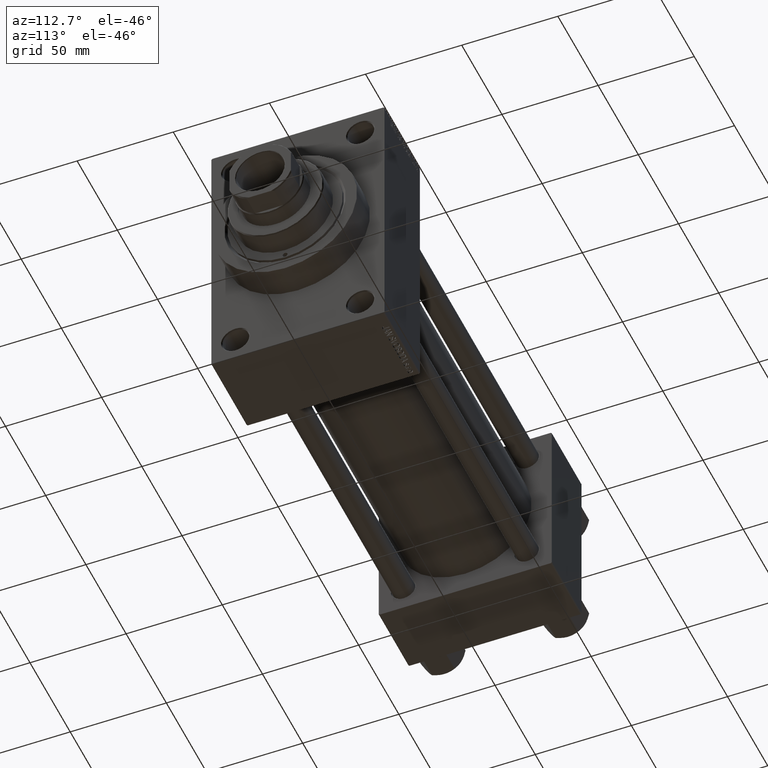
[diagram: clean part render]
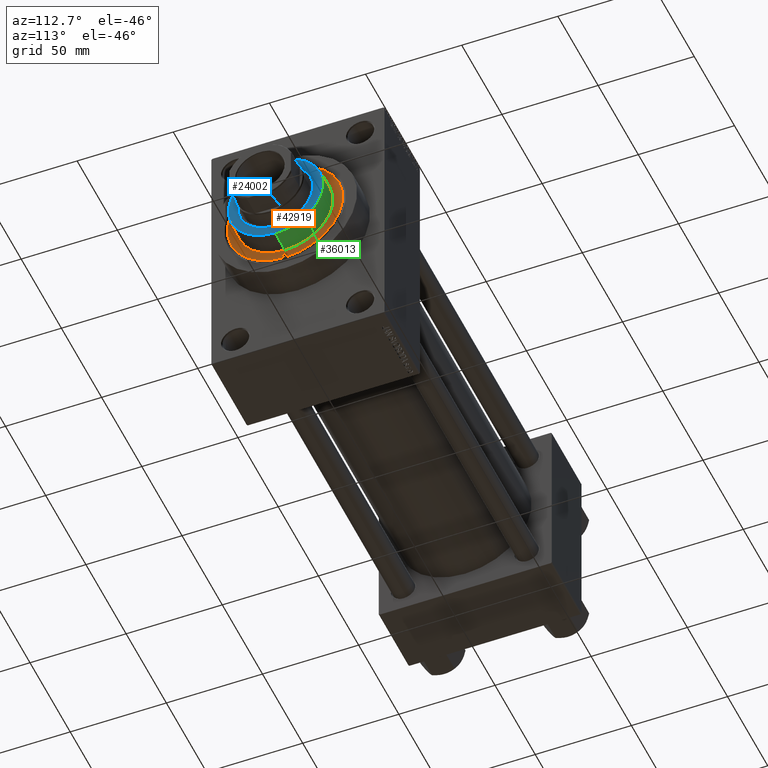
[diagram: same view with three faces highlighted in distinct colors, each labeled with its STEP entity id]
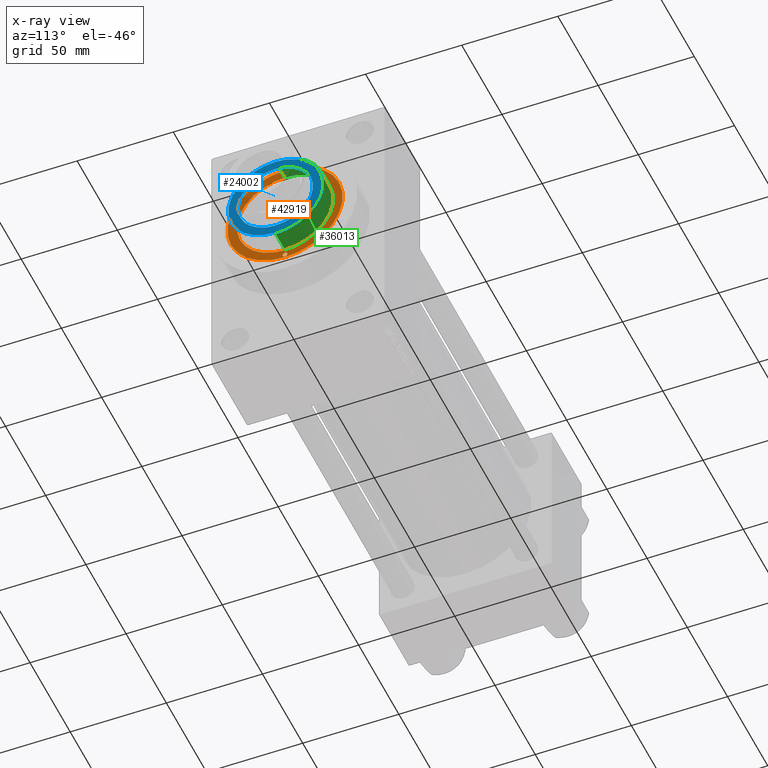
[diagram: x-ray of the same camera — body ghosted, the three highlighted faces saturated]
A machine part, auxiliary view with three faces highlighted in distinct colors.
The next image is the same camera in x-ray (body ghosted, the three faces saturated) — at least one of them is partly hidden behind the body in this view.
Their STEP definitions:

[orange] entity #42919 — the highlighted planar face has unit normal (1, -0, -0).
#709 = DIRECTION ( 'NONE',  ( 1.000000000000000000, 0.000000000000000000, -0.000000000000000000 ) ) ;
#940 = CARTESIAN_POINT ( 'NONE',  ( -29.50000000000000000, 1.530808498934188612E-16, 43.25999999999999801 ) ) ;
#1868 = DIRECTION ( 'NONE',  ( -0.000000000000000000, -0.000000000000000000, 1.000000000000000000 ) ) ;
#2945 = EDGE_CURVE ( 'NONE', #33630, #29931, #31204, .T. ) ;
#4031 = DIRECTION ( 'NONE',  ( 0.000000000000000000, 0.000000000000000000, 1.000000000000000000 ) ) ;
#4145 = CARTESIAN_POINT ( 'NONE',  ( -30.00000000000000000, 0.000000000000000000, 43.25999999999999801 ) ) ;
#4204 = ORIENTED_EDGE ( 'NONE', *, *, #40237, .F. ) ;
#4584 = DIRECTION ( 'NONE',  ( 1.000000000000000000, 0.000000000000000000, 0.000000000000000000 ) ) ;
#4725 = DIRECTION ( 'NONE',  ( 0.000000000000000000, 0.000000000000000000, 1.000000000000000000 ) ) ;
#4750 = CARTESIAN_POINT ( 'NONE',  ( -27.00000000000000355, 0.000000000000000000, 43.25999999999999801 ) ) ;
#5580 = EDGE_CURVE ( 'NONE', #46367, #14130, #36634, .T. ) ;
#5886 = VERTEX_POINT ( 'NONE', #16662 ) ;
#6287 = CIRCLE ( 'NONE', #33069, 1.249999999999997558 ) ;
#6380 = ORIENTED_EDGE ( 'NONE', *, *, #2945, .F. ) ;
#6697 = AXIS2_PLACEMENT_3D ( 'NONE', #14504, #44009, #19293 ) ;
#7420 = FACE_OUTER_BOUND ( 'NONE', #18756, .T. ) ;
#7507 = ORIENTED_EDGE ( 'NONE', *, *, #22323, .F. ) ;
#8165 = CARTESIAN_POINT ( 'NONE',  ( -28.25000000000000000, 0.000000000000000000, 43.25999999999999801 ) ) ;
#11342 = AXIS2_PLACEMENT_3D ( 'NONE', #18235, #21834, #36460 ) ;
#11930 = CARTESIAN_POINT ( 'NONE',  ( 25.00000000000000000, 3.061616997868383043E-15, 43.25999999999999801 ) ) ;
#12463 = DIRECTION ( 'NONE',  ( 1.000000000000000000, 0.000000000000000000, 0.000000000000000000 ) ) ;
#12469 = AXIS2_PLACEMENT_3D ( 'NONE', #30604, #29890, #40911 ) ;
#13873 = EDGE_LOOP ( 'NONE', ( #35812, #31053 ) ) ;
#14130 = VERTEX_POINT ( 'NONE', #31674 ) ;
#14504 = CARTESIAN_POINT ( 'NONE',  ( 28.25000000000000000, 0.000000000000000000, 43.25999999999999801 ) ) ;
#16584 = EDGE_LOOP ( 'NONE', ( #4204, #6380 ) ) ;
#16662 = CARTESIAN_POINT ( 'NONE',  ( 30.00000000000000000, 3.673940397442059178E-15, 43.25999999999999801 ) ) ;
#17263 = AXIS2_PLACEMENT_3D ( 'NONE', #18924, #45322, #12463 ) ;
#17550 = EDGE_CURVE ( 'NONE', #18374, #5886, #37943, .T. ) ;
#17974 = CARTESIAN_POINT ( 'NONE',  ( 0.000000000000000000, 0.000000000000000000, 43.25999999999999801 ) ) ;
#18179 = AXIS2_PLACEMENT_3D ( 'NONE', #41895, #1868, #38778 ) ;
#18235 = CARTESIAN_POINT ( 'NONE',  ( 28.25000000000000000, 0.000000000000000000, 43.25999999999999801 ) ) ;
#18374 = VERTEX_POINT ( 'NONE', #4145 ) ;
#18680 = DIRECTION ( 'NONE',  ( 0.000000000000000000, 0.000000000000000000, 1.000000000000000000 ) ) ;
#18756 = EDGE_LOOP ( 'NONE', ( #45859, #21720 ) ) ;
#18849 = CARTESIAN_POINT ( 'NONE',  ( 0.000000000000000000, 0.000000000000000000, 43.25999999999999801 ) ) ;
#18878 = DIRECTION ( 'NONE',  ( 1.000000000000000000, 0.000000000000000000, 0.000000000000000000 ) ) ;
#18924 = CARTESIAN_POINT ( 'NONE',  ( 0.000000000000000000, 0.000000000000000000, 43.25999999999999801 ) ) ;
#19293 = DIRECTION ( 'NONE',  ( 1.000000000000000000, 0.000000000000000000, 0.000000000000000000 ) ) ;
#19950 = EDGE_CURVE ( 'NONE', #22017, #35403, #24986, .T. ) ;
#21720 = ORIENTED_EDGE ( 'NONE', *, *, #42517, .T. ) ;
#21834 = DIRECTION ( 'NONE',  ( -0.000000000000000000, -0.000000000000000000, 1.000000000000000000 ) ) ;
#22017 = VERTEX_POINT ( 'NONE', #11930 ) ;
#22323 = EDGE_CURVE ( 'NONE', #14130, #46367, #39610, .T. ) ;
#22746 = FACE_BOUND ( 'NONE', #30919, .T. ) ;
#23169 = CIRCLE ( 'NONE', #12469, 30.00000000000000000 ) ;
#23965 = AXIS2_PLACEMENT_3D ( 'NONE', #17974, #18680, #709 ) ;
#24986 = CIRCLE ( 'NONE', #29581, 25.00000000000000000 ) ;
#29019 = FACE_BOUND ( 'NONE', #16584, .T. ) ;
#29581 = AXIS2_PLACEMENT_3D ( 'NONE', #36880, #4031, #18878 ) ;
#29776 = CARTESIAN_POINT ( 'NONE',  ( -25.00000000000000000, 0.000000000000000000, 43.25999999999999801 ) ) ;
#29890 = DIRECTION ( 'NONE',  ( 0.000000000000000000, 0.000000000000000000, 1.000000000000000000 ) ) ;
#29931 = VERTEX_POINT ( 'NONE', #4750 ) ;
#30604 = CARTESIAN_POINT ( 'NONE',  ( 0.000000000000000000, 0.000000000000000000, 43.25999999999999801 ) ) ;
#30919 = EDGE_LOOP ( 'NONE', ( #42489, #7507 ) ) ;
#31053 = ORIENTED_EDGE ( 'NONE', *, *, #19950, .F. ) ;
#31204 = CIRCLE ( 'NONE', #18179, 1.249999999999997558 ) ;
#31674 = CARTESIAN_POINT ( 'NONE',  ( 27.00000000000000355, 1.530808498934188612E-16, 43.25999999999999801 ) ) ;
#32841 = FACE_BOUND ( 'NONE', #13873, .T. ) ;
#33069 = AXIS2_PLACEMENT_3D ( 'NONE', #8165, #37422, #4584 ) ;
#33137 = CIRCLE ( 'NONE', #36975, 25.00000000000000000 ) ;
#33630 = VERTEX_POINT ( 'NONE', #940 ) ;
#35403 = VERTEX_POINT ( 'NONE', #29776 ) ;
#35812 = ORIENTED_EDGE ( 'NONE', *, *, #42460, .F. ) ;
#36460 = DIRECTION ( 'NONE',  ( 1.000000000000000000, 0.000000000000000000, 0.000000000000000000 ) ) ;
#36634 = CIRCLE ( 'NONE', #11342, 1.249999999999997558 ) ;
#36880 = CARTESIAN_POINT ( 'NONE',  ( 0.000000000000000000, 0.000000000000000000, 43.25999999999999801 ) ) ;
#36975 = AXIS2_PLACEMENT_3D ( 'NONE', #18849, #4725, #41625 ) ;
#37422 = DIRECTION ( 'NONE',  ( -0.000000000000000000, -0.000000000000000000, 1.000000000000000000 ) ) ;
#37943 = CIRCLE ( 'NONE', #17263, 30.00000000000000000 ) ;
#38778 = DIRECTION ( 'NONE',  ( 1.000000000000000000, 0.000000000000000000, 0.000000000000000000 ) ) ;
#39610 = CIRCLE ( 'NONE', #6697, 1.249999999999997558 ) ;
#40237 = EDGE_CURVE ( 'NONE', #29931, #33630, #6287, .T. ) ;
#40911 = DIRECTION ( 'NONE',  ( 1.000000000000000000, 0.000000000000000000, 0.000000000000000000 ) ) ;
#41286 = CARTESIAN_POINT ( 'NONE',  ( 29.50000000000000000, 0.000000000000000000, 43.25999999999999801 ) ) ;
#41625 = DIRECTION ( 'NONE',  ( 1.000000000000000000, 0.000000000000000000, 0.000000000000000000 ) ) ;
#41895 = CARTESIAN_POINT ( 'NONE',  ( -28.25000000000000000, 0.000000000000000000, 43.25999999999999801 ) ) ;
#42460 = EDGE_CURVE ( 'NONE', #35403, #22017, #33137, .T. ) ;
#42489 = ORIENTED_EDGE ( 'NONE', *, *, #5580, .F. ) ;
#42517 = EDGE_CURVE ( 'NONE', #5886, #18374, #23169, .T. ) ;
#42919 = ADVANCED_FACE ( 'NONE', ( #29019, #22746, #32841, #7420 ), #43651, .T. ) ;
#43651 = PLANE ( 'NONE',  #23965 ) ;
#44009 = DIRECTION ( 'NONE',  ( -0.000000000000000000, -0.000000000000000000, 1.000000000000000000 ) ) ;
#45322 = DIRECTION ( 'NONE',  ( 0.000000000000000000, 0.000000000000000000, 1.000000000000000000 ) ) ;
#45859 = ORIENTED_EDGE ( 'NONE', *, *, #17550, .T. ) ;
#46367 = VERTEX_POINT ( 'NONE', #41286 ) ;

[blue] entity #24002 — the highlighted planar face has unit normal (1, -0, -0).
#439 = CARTESIAN_POINT ( 'NONE',  ( 19.50000000000000000, 0.000000000000000000, 55.26000000000000512 ) ) ;
#5825 = VERTEX_POINT ( 'NONE', #439 ) ;
#6241 = DIRECTION ( 'NONE',  ( 1.000000000000000000, 0.000000000000000000, -0.000000000000000000 ) ) ;
#6572 = EDGE_CURVE ( 'NONE', #6931, #24900, #34372, .T. ) ;
#6800 = AXIS2_PLACEMENT_3D ( 'NONE', #35477, #39310, #21083 ) ;
#6931 = VERTEX_POINT ( 'NONE', #11422 ) ;
#8837 = ORIENTED_EDGE ( 'NONE', *, *, #33638, .F. ) ;
#9269 = CIRCLE ( 'NONE', #13085, 19.50000000000000000 ) ;
#9368 = CARTESIAN_POINT ( 'NONE',  ( 0.000000000000000000, 0.000000000000000000, 55.26000000000000512 ) ) ;
#11422 = CARTESIAN_POINT ( 'NONE',  ( -24.50000000000001066, 0.000000000000000000, 55.26000000000000512 ) ) ;
#13085 = AXIS2_PLACEMENT_3D ( 'NONE', #31607, #46444, #38563 ) ;
#14382 = AXIS2_PLACEMENT_3D ( 'NONE', #9368, #38835, #6241 ) ;
#14735 = EDGE_CURVE ( 'NONE', #24900, #6931, #38638, .T. ) ;
#15537 = EDGE_LOOP ( 'NONE', ( #33160, #23426 ) ) ;
#16463 = VERTEX_POINT ( 'NONE', #23772 ) ;
#18574 = CARTESIAN_POINT ( 'NONE',  ( 24.50000000000001066, 3.031000827889700044E-15, 55.26000000000000512 ) ) ;
#21083 = DIRECTION ( 'NONE',  ( 1.000000000000000000, 0.000000000000000000, 0.000000000000000000 ) ) ;
#21784 = AXIS2_PLACEMENT_3D ( 'NONE', #35554, #31961, #46586 ) ;
#23426 = ORIENTED_EDGE ( 'NONE', *, *, #14735, .T. ) ;
#23772 = CARTESIAN_POINT ( 'NONE',  ( -19.50000000000000000, 2.388061258337338939E-15, 55.26000000000000512 ) ) ;
#24002 = ADVANCED_FACE ( 'NONE', ( #46495, #28756 ), #24443, .T. ) ;
#24443 = PLANE ( 'NONE',  #14382 ) ;
#24636 = AXIS2_PLACEMENT_3D ( 'NONE', #40306, #36253, #46821 ) ;
#24900 = VERTEX_POINT ( 'NONE', #18574 ) ;
#28756 = FACE_OUTER_BOUND ( 'NONE', #15537, .T. ) ;
#30643 = ORIENTED_EDGE ( 'NONE', *, *, #40879, .F. ) ;
#31607 = CARTESIAN_POINT ( 'NONE',  ( 0.000000000000000000, 0.000000000000000000, 55.26000000000000512 ) ) ;
#31961 = DIRECTION ( 'NONE',  ( 0.000000000000000000, 0.000000000000000000, 1.000000000000000000 ) ) ;
#33160 = ORIENTED_EDGE ( 'NONE', *, *, #6572, .T. ) ;
#33638 = EDGE_CURVE ( 'NONE', #5825, #16463, #9269, .T. ) ;
#34372 = CIRCLE ( 'NONE', #6800, 24.50000000000001066 ) ;
#35477 = CARTESIAN_POINT ( 'NONE',  ( 0.000000000000000000, 0.000000000000000000, 55.26000000000000512 ) ) ;
#35554 = CARTESIAN_POINT ( 'NONE',  ( 0.000000000000000000, 0.000000000000000000, 55.26000000000000512 ) ) ;
#36253 = DIRECTION ( 'NONE',  ( 0.000000000000000000, 0.000000000000000000, 1.000000000000000000 ) ) ;
#36908 = CIRCLE ( 'NONE', #24636, 19.50000000000000000 ) ;
#37232 = EDGE_LOOP ( 'NONE', ( #8837, #30643 ) ) ;
#38563 = DIRECTION ( 'NONE',  ( 1.000000000000000000, 0.000000000000000000, 0.000000000000000000 ) ) ;
#38638 = CIRCLE ( 'NONE', #21784, 24.50000000000001066 ) ;
#38835 = DIRECTION ( 'NONE',  ( 0.000000000000000000, 0.000000000000000000, 1.000000000000000000 ) ) ;
#39310 = DIRECTION ( 'NONE',  ( 0.000000000000000000, 0.000000000000000000, 1.000000000000000000 ) ) ;
#40306 = CARTESIAN_POINT ( 'NONE',  ( 0.000000000000000000, 0.000000000000000000, 55.26000000000000512 ) ) ;
#40879 = EDGE_CURVE ( 'NONE', #16463, #5825, #36908, .T. ) ;
#46444 = DIRECTION ( 'NONE',  ( 0.000000000000000000, 0.000000000000000000, 1.000000000000000000 ) ) ;
#46495 = FACE_BOUND ( 'NONE', #37232, .T. ) ;
#46586 = DIRECTION ( 'NONE',  ( 1.000000000000000000, 0.000000000000000000, 0.000000000000000000 ) ) ;
#46821 = DIRECTION ( 'NONE',  ( 1.000000000000000000, 0.000000000000000000, 0.000000000000000000 ) ) ;

[green] entity #36013 — the highlighted cylindrical surface (partial cylindrical patch) has radius 25 mm, axis along (-1, 0, 0).
#4725 = DIRECTION ( 'NONE',  ( 0.000000000000000000, 0.000000000000000000, 1.000000000000000000 ) ) ;
#5537 = ORIENTED_EDGE ( 'NONE', *, *, #43072, .T. ) ;
#6223 = DIRECTION ( 'NONE',  ( 1.000000000000000000, 0.000000000000000000, 0.000000000000000000 ) ) ;
#6945 = LINE ( 'NONE', #14601, #24582 ) ;
#7489 = DIRECTION ( 'NONE',  ( -1.000000000000000000, 0.000000000000000000, 0.000000000000000000 ) ) ;
#11180 = EDGE_CURVE ( 'NONE', #34282, #22017, #6945, .T. ) ;
#11584 = ORIENTED_EDGE ( 'NONE', *, *, #29690, .T. ) ;
#11930 = CARTESIAN_POINT ( 'NONE',  ( 25.00000000000000000, 3.061616997868383043E-15, 43.25999999999999801 ) ) ;
#13609 = VERTEX_POINT ( 'NONE', #45419 ) ;
#14601 = CARTESIAN_POINT ( 'NONE',  ( 25.00000000000000000, 3.061616997868383043E-15, 55.26000000000000512 ) ) ;
#18849 = CARTESIAN_POINT ( 'NONE',  ( 0.000000000000000000, 0.000000000000000000, 43.25999999999999801 ) ) ;
#21277 = LINE ( 'NONE', #28483, #33923 ) ;
#21651 = CYLINDRICAL_SURFACE ( 'NONE', #45309, 25.00000000000000000 ) ;
#22017 = VERTEX_POINT ( 'NONE', #11930 ) ;
#24582 = VECTOR ( 'NONE', #35488, 1000.000000000000000 ) ;
#26123 = ORIENTED_EDGE ( 'NONE', *, *, #11180, .F. ) ;
#28483 = CARTESIAN_POINT ( 'NONE',  ( -25.00000000000000000, 0.000000000000000000, 55.26000000000000512 ) ) ;
#29690 = EDGE_CURVE ( 'NONE', #34282, #13609, #35907, .T. ) ;
#29776 = CARTESIAN_POINT ( 'NONE',  ( -25.00000000000000000, 0.000000000000000000, 43.25999999999999801 ) ) ;
#33137 = CIRCLE ( 'NONE', #36975, 25.00000000000000000 ) ;
#33236 = ORIENTED_EDGE ( 'NONE', *, *, #42460, .T. ) ;
#33923 = VECTOR ( 'NONE', #43123, 1000.000000000000000 ) ;
#34282 = VERTEX_POINT ( 'NONE', #40258 ) ;
#35403 = VERTEX_POINT ( 'NONE', #29776 ) ;
#35488 = DIRECTION ( 'NONE',  ( -0.000000000000000000, -0.000000000000000000, -1.000000000000000000 ) ) ;
#35907 = CIRCLE ( 'NONE', #38209, 25.00000000000000000 ) ;
#36013 = ADVANCED_FACE ( 'NONE', ( #39624 ), #21651, .T. ) ;
#36037 = CARTESIAN_POINT ( 'NONE',  ( 0.000000000000000000, 0.000000000000000000, 55.26000000000000512 ) ) ;
#36975 = AXIS2_PLACEMENT_3D ( 'NONE', #18849, #4725, #41625 ) ;
#38209 = AXIS2_PLACEMENT_3D ( 'NONE', #43142, #39512, #6223 ) ;
#39512 = DIRECTION ( 'NONE',  ( 0.000000000000000000, 0.000000000000000000, -1.000000000000000000 ) ) ;
#39624 = FACE_OUTER_BOUND ( 'NONE', #40247, .T. ) ;
#40247 = EDGE_LOOP ( 'NONE', ( #26123, #11584, #5537, #33236 ) ) ;
#40258 = CARTESIAN_POINT ( 'NONE',  ( 25.00000000000000000, 3.061616997868383043E-15, 54.76000000000000512 ) ) ;
#41625 = DIRECTION ( 'NONE',  ( 1.000000000000000000, 0.000000000000000000, 0.000000000000000000 ) ) ;
#42460 = EDGE_CURVE ( 'NONE', #35403, #22017, #33137, .T. ) ;
#43072 = EDGE_CURVE ( 'NONE', #13609, #35403, #21277, .T. ) ;
#43123 = DIRECTION ( 'NONE',  ( -0.000000000000000000, -0.000000000000000000, -1.000000000000000000 ) ) ;
#43142 = CARTESIAN_POINT ( 'NONE',  ( 0.000000000000000000, 0.000000000000000000, 54.76000000000000512 ) ) ;
#45309 = AXIS2_PLACEMENT_3D ( 'NONE', #36037, #46840, #7489 ) ;
#45419 = CARTESIAN_POINT ( 'NONE',  ( -25.00000000000000000, 0.000000000000000000, 54.76000000000000512 ) ) ;
#46840 = DIRECTION ( 'NONE',  ( -0.000000000000000000, -0.000000000000000000, -1.000000000000000000 ) ) ;